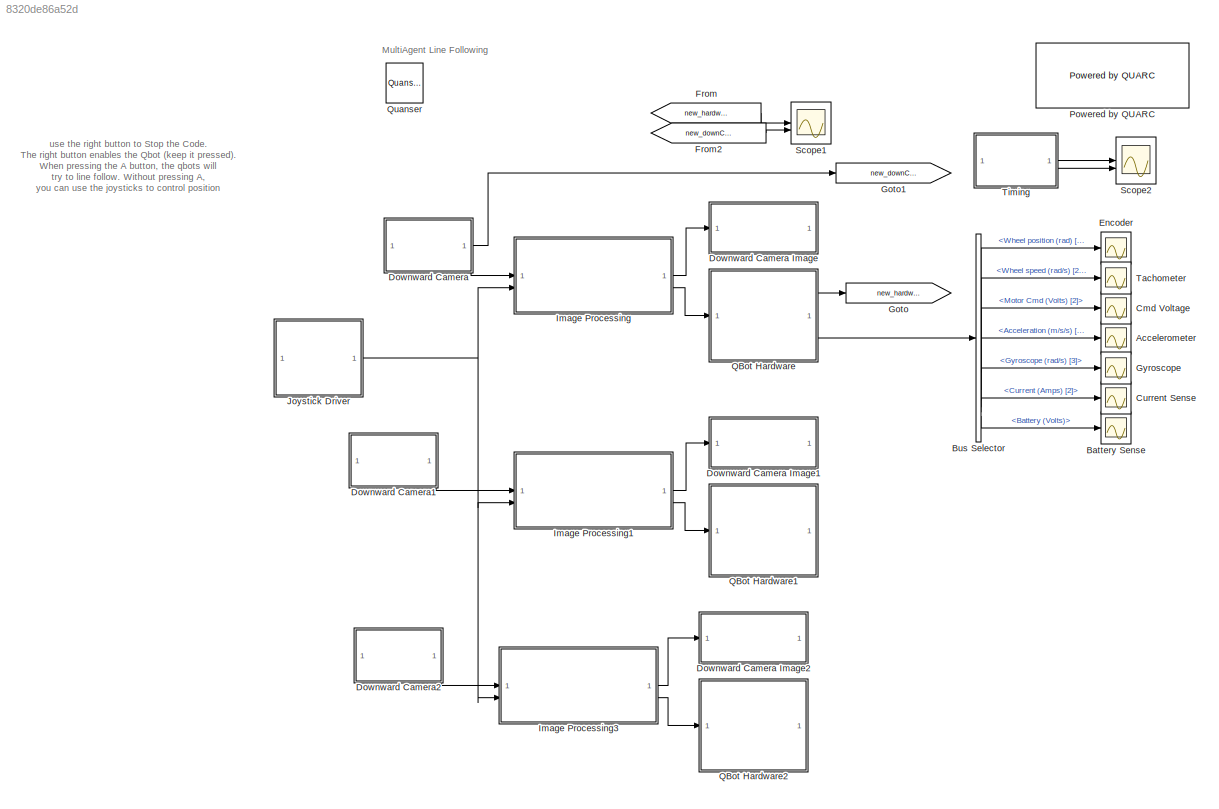
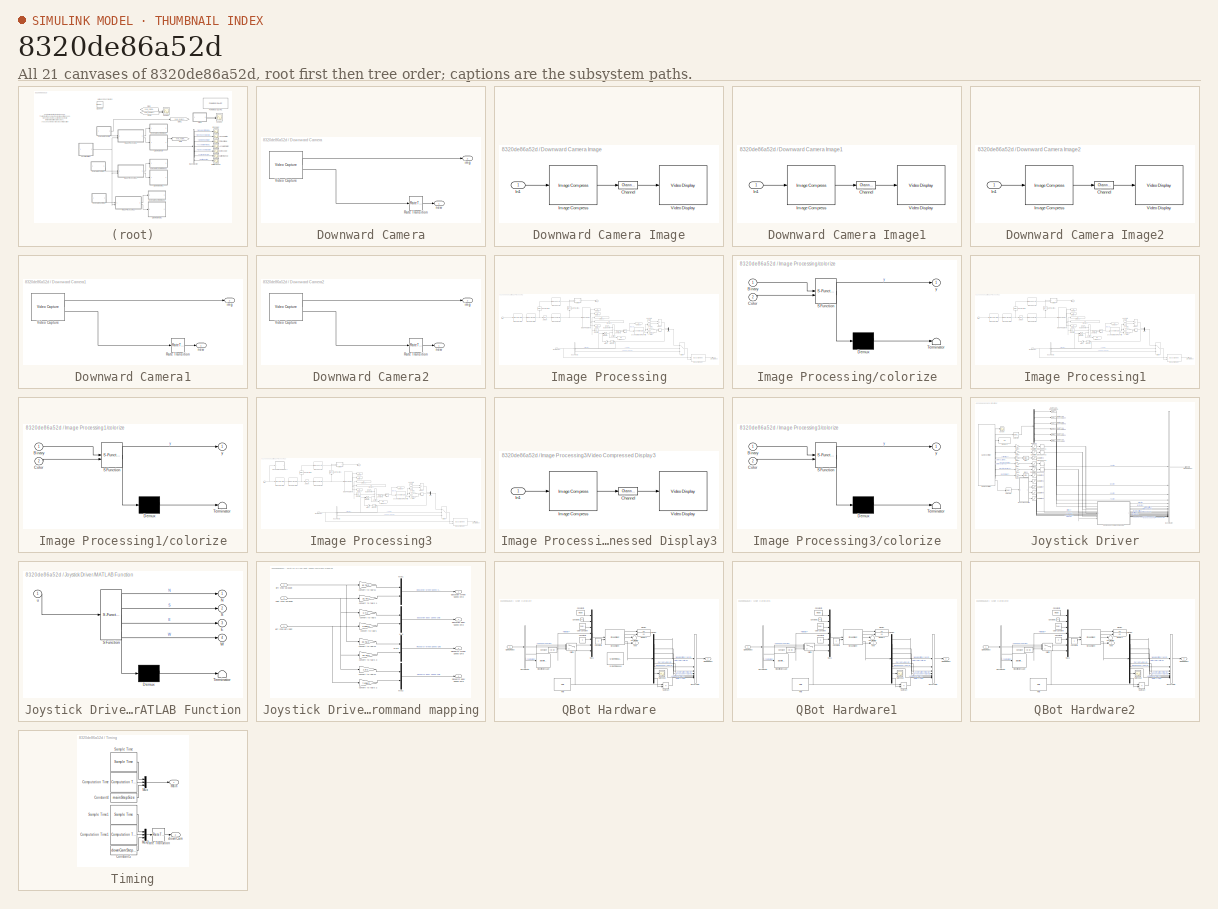
[diagram: thumbnail index - all 21 canvases of the model, root first then tree order]
MODEL slx_8320de86a52d
KIND model
CONFIG AbsTol = auto
CONFIG EnableMultiTasking = on
CONFIG FixedStep = 1/60
CONFIG MaxStep = auto
CONFIG MinStep = auto
CONFIG RelTol = 1e-3
CONFIG SampleTimeConstraint = Unconstrained
CONFIG SolverName = ode1
CONFIG StartTime = 0.0
CONFIG StopTime = inf
WORKSPACE source: mxarray member
WORKSPACE downCamStepSize: Simulink.Parameter (value not decoded)
WORKSPACE lidarStepSize: Simulink.Parameter (value not decoded)
WORKSPACE mainStepSize: Simulink.Parameter (value not decoded)
WORKSPACE mode: Simulink.Parameter (value not decoded)
WORKSPACE realSenseStepSize: Simulink.Parameter (value not decoded)
BLOCK [Scope] Accelerometer
  Commented = on
  Floating = off
  NameLocation = right
  NumInputPorts = 1
  ScopeSpecificationString = Simulink.scopes.TimeScopeBlockCfg('CurrentConfiguration', extmgr.ConfigurationSet(extmgr.Configuration('Core','General UI',true),extmgr.Configuration('Core','Source UI',true),extmgr.Configuration('Sources','WiredSimulink',true,'DataLoggingVariableName','ScopeData5'),extmgr.Configuration('Visuals','Time Domain',true,'SerializedDisplays',{struct('MinYLimReal','-1.32758','MaxYLimReal','11.23','YLabel...<+1468ch>
BLOCK [Scope] Battery Sense
  Commented = on
  Floating = off
  NameLocation = right
  NumInputPorts = 1
  ScopeSpecificationString = Simulink.scopes.TimeScopeBlockCfg('CurrentConfiguration', extmgr.ConfigurationSet(extmgr.Configuration('Core','General UI',true),extmgr.Configuration('Core','Source UI',true),extmgr.Configuration('Sources','WiredSimulink',true,'DataLoggingVariableName','ScopeData8'),extmgr.Configuration('Visuals','Time Domain',true,'SerializedDisplays',{struct('MinYLimReal','12.81161','MaxYLimReal','12.96349','YLa...<+1408ch>
BLOCK [BusSelector] Bus Selector
  Commented = on
  OutputSignals = Wheel position (rad) [2],Wheel speed (rad/s) [2],Motor Cmd (Volts) [2],Acceleration (m/s/s) [3],Gyroscope (rad/s) [3],Current (Amps) [2],Battery (Volts)
BLOCK [Scope] Cmd Voltage
  Commented = on
  Floating = off
  NameLocation = right
  NumInputPorts = 1
  ScopeSpecificationString = Simulink.scopes.TimeScopeBlockCfg('CurrentConfiguration', extmgr.ConfigurationSet(extmgr.Configuration('Core','General UI',true),extmgr.Configuration('Core','Source UI',true),extmgr.Configuration('Sources','WiredSimulink',true,'DataLoggingVariableName','ScopeData4'),extmgr.Configuration('Visuals','Time Domain',true,'SerializedDisplays',{struct('MinYLimReal','-1.00000','MaxYLimReal','1.00000','YLab...<+1441ch>
BLOCK [Scope] Current Sense
  Commented = on
  Floating = off
  NameLocation = right
  NumInputPorts = 1
  ScopeSpecificationString = Simulink.scopes.TimeScopeBlockCfg('CurrentConfiguration', extmgr.ConfigurationSet(extmgr.Configuration('Core','General UI',true),extmgr.Configuration('Core','Source UI',true),extmgr.Configuration('Sources','WiredSimulink',true,'DataLoggingVariableName','ScopeData7'),extmgr.Configuration('Visuals','Time Domain',true,'SerializedDisplays',{struct('MinYLimReal','-0.05029','MaxYLimReal','0.45265','YLab...<+1434ch>
BLOCK [SubSystem] Downward Camera
BLOCK [SubSystem] Downward Camera Image
  CopyFcn = set_param(gcbh, 'UserData', gcb);\nset_param(gcbh, 'LinkStatus', 'none');
  LoadFcn = set_param(gcbh, 'UserData', gcb);
  NameChangeFcn = video_display_show([get_param(gcbh, 'UserData'), '/Video Display'], 'rename', [gcb, '/Video Display']);\nvideo_display_show([gcb, '/Video Display'], 'add', gcb);\nset_param(gcbh, 'UserData', gcb);  <repeated x4 — deduplicated; at blocks: Downward Camera Image, Downward Camera Image1, Downward Camera Image2, Video Compressed Display3>
  NameLocation = top
  OpenFcn = video_display_show([gcb, '/Video Display'], 'show', gcb);
  PreDeleteFcn = video_display_show([gcb, '/Video Display'], 'delete');
  StartFcn = video_display_show([gcb, '/Video Display'], 'add', gcb);
  UndoDeleteFcn = set_param(gcbh, 'UserData', gcb);
BLOCK [Reference] Downward Camera Image/Channel  REF=quarc_library/Signal Routing/Channel
  SourceBlock = quarc_library/Signal Routing/Channel
  SourceProductName = QUARC Targets
  SourceType = Channel
BLOCK [Reference] Downward Camera Image/Image Compress  REF=quarc_library/Image Processing/Generic/Image Compress
  AttributesFormatString = (%<algorithm>)
  SourceBlock = quarc_library/Image Processing/Generic/Image Compress
  SourceProductName = QUARC Targets
  SourceType = Image Compress
BLOCK [Inport] Downward Camera Image/In1
BLOCK [Reference] Downward Camera Image/Video Display  REF=quarc_library/Multimedia/Video Display
  SourceBlock = quarc_library/Multimedia/Video Display
  SourceProductName = QUARC Targets
  SourceType = Video Display
  Tag = line_following_2023a/Downward Camera Image/Video Display
  UserDataPersistent = on
BLOCK [SubSystem] Downward Camera Image1
  CopyFcn = set_param(gcbh, 'UserData', gcb);\nset_param(gcbh, 'LinkStatus', 'none');
  LoadFcn = set_param(gcbh, 'UserData', gcb);
  NameLocation = top
  OpenFcn = video_display_show([gcb, '/Video Display'], 'show', gcb);
  PreDeleteFcn = video_display_show([gcb, '/Video Display'], 'delete');
  StartFcn = video_display_show([gcb, '/Video Display'], 'add', gcb);
  UndoDeleteFcn = set_param(gcbh, 'UserData', gcb);
BLOCK [Reference] Downward Camera Image1/Channel  REF=quarc_library/Signal Routing/Channel
  SourceBlock = quarc_library/Signal Routing/Channel
  SourceProductName = QUARC Targets
  SourceType = Channel
BLOCK [Reference] Downward Camera Image1/Image Compress  REF=quarc_library/Image Processing/Generic/Image Compress
  AttributesFormatString = (%<algorithm>)
  SourceBlock = quarc_library/Image Processing/Generic/Image Compress
  SourceProductName = QUARC Targets
  SourceType = Image Compress
BLOCK [Inport] Downward Camera Image1/In1
BLOCK [Reference] Downward Camera Image1/Video Display  REF=quarc_library/Multimedia/Video Display
  SourceBlock = quarc_library/Multimedia/Video Display
  SourceProductName = QUARC Targets
  SourceType = Video Display
  Tag = line_following_2023a/Downward Camera Image1/Video Display
  UserDataPersistent = on
BLOCK [SubSystem] Downward Camera Image2
  CopyFcn = set_param(gcbh, 'UserData', gcb);\nset_param(gcbh, 'LinkStatus', 'none');
  LoadFcn = set_param(gcbh, 'UserData', gcb);
  NameLocation = top
  OpenFcn = video_display_show([gcb, '/Video Display'], 'show', gcb);
  PreDeleteFcn = video_display_show([gcb, '/Video Display'], 'delete');
  StartFcn = video_display_show([gcb, '/Video Display'], 'add', gcb);
  UndoDeleteFcn = set_param(gcbh, 'UserData', gcb);
BLOCK [Reference] Downward Camera Image2/Channel  REF=quarc_library/Signal Routing/Channel
  SourceBlock = quarc_library/Signal Routing/Channel
  SourceProductName = QUARC Targets
  SourceType = Channel
BLOCK [Reference] Downward Camera Image2/Image Compress  REF=quarc_library/Image Processing/Generic/Image Compress
  AttributesFormatString = (%<algorithm>)
  SourceBlock = quarc_library/Image Processing/Generic/Image Compress
  SourceProductName = QUARC Targets
  SourceType = Image Compress
BLOCK [Inport] Downward Camera Image2/In1
BLOCK [Reference] Downward Camera Image2/Video Display  REF=quarc_library/Multimedia/Video Display
  SourceBlock = quarc_library/Multimedia/Video Display
  SourceProductName = QUARC Targets
  SourceType = Video Display
  Tag = line_following_2023a/Downward Camera Image2/Video Display
  UserDataPersistent = on
BLOCK [RateTransition] Downward Camera/Rate Transition
BLOCK [Reference] Downward Camera/Video Capture  REF=quarc_library/Multimedia/Video Capture
  SourceBlock = quarc_library/Multimedia/Video Capture
  SourceProductName = QUARC Targets
  SourceType = Video Capture
BLOCK [Outport] Downward Camera/img
  Port = 2
BLOCK [Outport] Downward Camera/new
BLOCK [SubSystem] Downward Camera1
BLOCK [RateTransition] Downward Camera1/Rate Transition
BLOCK [Reference] Downward Camera1/Video Capture  REF=quarc_library/Multimedia/Video Capture
  SourceBlock = quarc_library/Multimedia/Video Capture
  SourceProductName = QUARC Targets
  SourceType = Video Capture
BLOCK [Outport] Downward Camera1/img
  Port = 2
BLOCK [Outport] Downward Camera1/new
BLOCK [SubSystem] Downward Camera2
BLOCK [RateTransition] Downward Camera2/Rate Transition
BLOCK [Reference] Downward Camera2/Video Capture  REF=quarc_library/Multimedia/Video Capture
  SourceBlock = quarc_library/Multimedia/Video Capture
  SourceProductName = QUARC Targets
  SourceType = Video Capture
BLOCK [Outport] Downward Camera2/img
  Port = 2
BLOCK [Outport] Downward Camera2/new
BLOCK [Scope] Encoder
  Commented = on
  Floating = off
  NameLocation = right
  NumInputPorts = 1
  ScopeSpecificationString = Simulink.scopes.TimeScopeBlockCfg('CurrentConfiguration', extmgr.ConfigurationSet(extmgr.Configuration('Core','General UI',true),extmgr.Configuration('Core','Source UI',true),extmgr.Configuration('Sources','WiredSimulink',true,'DataLoggingVariableName','ScopeData2'),extmgr.Configuration('Visuals','Time Domain',true,'SerializedDisplays',{struct('MinYLimReal','-23.46955','MaxYLimReal','23.65434','YL...<+1452ch>
BLOCK [From] From
  GotoTag = new_hardware
BLOCK [From] From2
  GotoTag = new_downCam
BLOCK [Goto] Goto
  GotoTag = new_hardware
BLOCK [Goto] Goto1
  GotoTag = new_downCam
BLOCK [Scope] Gyroscope
  Commented = on
  Floating = off
  NameLocation = right
  NumInputPorts = 1
  ScopeSpecificationString = Simulink.scopes.TimeScopeBlockCfg('CurrentConfiguration', extmgr.ConfigurationSet(extmgr.Configuration('Core','General UI',true),extmgr.Configuration('Core','Source UI',true),extmgr.Configuration('Sources','WiredSimulink',true,'DataLoggingVariableName','ScopeData6'),extmgr.Configuration('Visuals','Time Domain',true,'SerializedDisplays',{struct('MinYLimReal','-0.40322','MaxYLimReal','1.99912','YLab...<+1468ch>
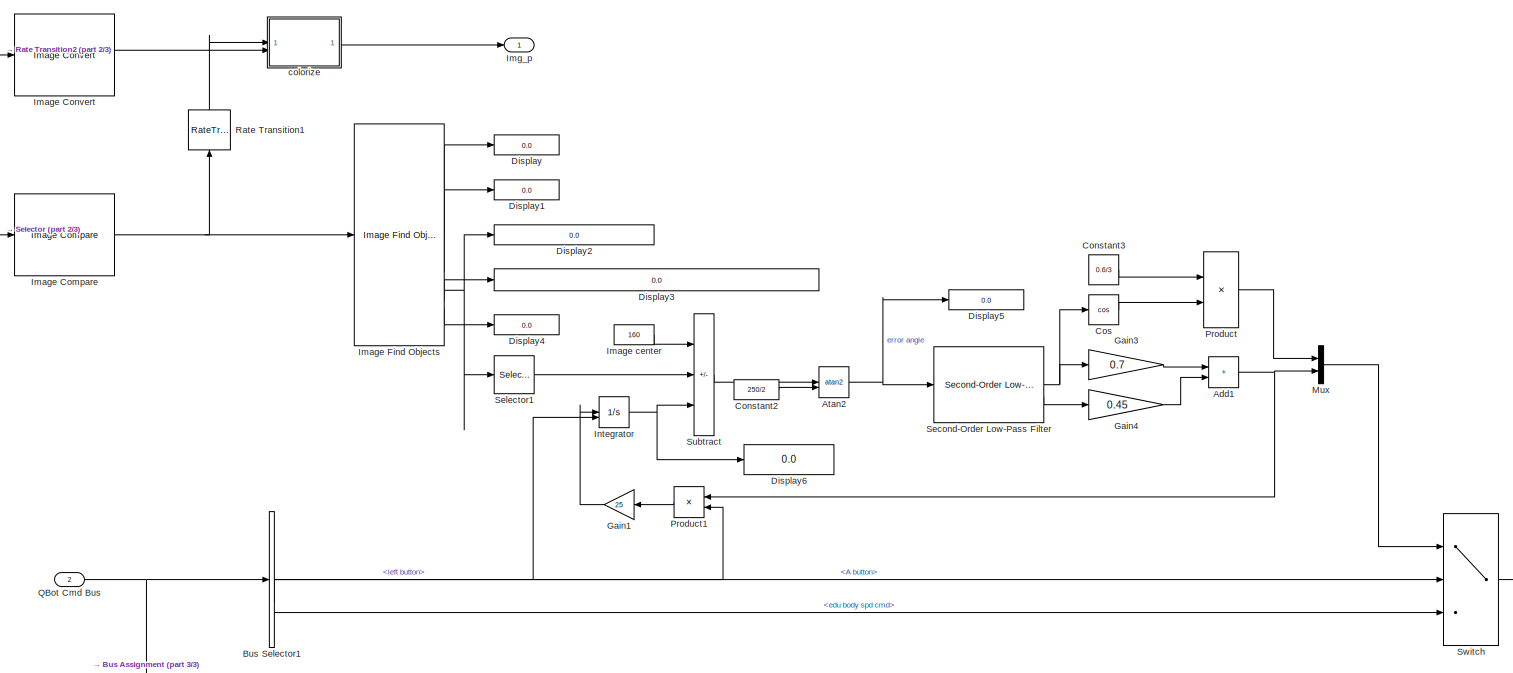
[diagram: Image Processing - part 1/3, center side, full height]
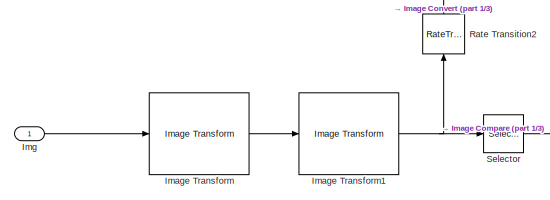
[diagram: Image Processing - part 2/3, top left region]
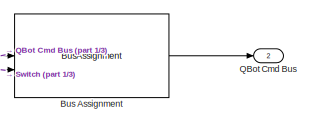
[diagram: Image Processing - part 3/3, bottom right region]
BLOCK [SubSystem] Image Processing
BLOCK [Sum] Image Processing/Add1
  IconShape = rectangular
BLOCK [Trigonometry] Image Processing/Atan2
  Operator = atan2
BLOCK [BusAssignment] Image Processing/Bus Assignment
  AssignedSignals = edu body spd cmd
BLOCK [BusSelector] Image Processing/Bus Selector1
  OutputSignals = left button,A button,edu body spd cmd
BLOCK [Constant] Image Processing/Constant2
  Value = 250/2
BLOCK [Constant] Image Processing/Constant3
  Value = 0.6/3
BLOCK [Trigonometry] Image Processing/Cos
  Operator = cos
BLOCK [Display] Image Processing/Display
  Format = bank
BLOCK [Display] Image Processing/Display1
  Format = bank
BLOCK [Display] Image Processing/Display2
  Format = bank
BLOCK [Display] Image Processing/Display3
  Format = bank
BLOCK [Display] Image Processing/Display4
  Format = bank
BLOCK [Display] Image Processing/Display5
  Decimation = 1
BLOCK [Display] Image Processing/Display6
  Decimation = 1
BLOCK [Gain] Image Processing/Gain1
  Gain = 25
  NameLocation = top
BLOCK [Gain] Image Processing/Gain3
  Gain = 0.7
BLOCK [Gain] Image Processing/Gain4
  Gain = 0.45
BLOCK [Reference] Image Processing/Image Compare  REF=quarc_library/Image Processing/Generic/Image Compare
  SourceBlock = quarc_library/Image Processing/Generic/Image Compare
  SourceProductName = QUARC Targets
  SourceType = Image Compare
BLOCK [Reference] Image Processing/Image Convert  REF=quarc_library/Image Processing/Generic/Image Convert
  AttributesFormatString = (%<input_format>)
  SourceBlock = quarc_library/Image Processing/Generic/Image Convert
  SourceProductName = QUARC Targets
  SourceType = Image Convert
BLOCK [Reference] Image Processing/Image Find Objects  REF=quarc_library/Image Processing/Generic/Image Find Objects
  SourceBlock = quarc_library/Image Processing/Generic/Image Find Objects
  SourceProductName = QUARC Targets
  SourceType = Image Find Objects
BLOCK [Reference] Image Processing/Image Transform  REF=quarc_library/Image Processing/Generic/Image Transform
  AttributesFormatString = (%<algorithm>)
  SourceBlock = quarc_library/Image Processing/Generic/Image Transform
  SourceProductName = QUARC Targets
  SourceType = Image Transform
BLOCK [Reference] Image Processing/Image Transform1  REF=quarc_library/Image Processing/Generic/Image Transform
  AttributesFormatString = (%<algorithm>)
  SourceBlock = quarc_library/Image Processing/Generic/Image Transform
  SourceProductName = QUARC Targets
  SourceType = Image Transform
BLOCK [Constant] Image Processing/Image center
  Value = 160
BLOCK [Inport] Image Processing/Img
BLOCK [Outport] Image Processing/Img_p
BLOCK [Integrator] Image Processing/Integrator
  ExternalReset = falling
  LimitOutput = on
  LowerSaturationLimit = -75
  UpperSaturationLimit = 75
BLOCK [Mux] Image Processing/Mux
  DisplayOption = bar
  Inputs = 2
BLOCK [Product] Image Processing/Product
BLOCK [Product] Image Processing/Product1
  NameLocation = top
BLOCK [Outport] Image Processing/QBot Cmd Bus
  Port = 2
BLOCK [Inport] Image Processing/QBot Cmd Bus 
  Port = 2
BLOCK [RateTransition] Image Processing/Rate Transition1
  NameLocation = right
  OutPortSampleTime = downCamStepSize*2
BLOCK [RateTransition] Image Processing/Rate Transition2
  NameLocation = right
  OutPortSampleTime = downCamStepSize*2
BLOCK [Reference] Image Processing/Second-Order Low-Pass Filter  REF=quarc_library/Continuous/Second-Order
Low-Pass Filter
  SourceBlock = quarc_library/Continuous/Second-Order\nLow-Pass Filter
  SourceProductName = QUARC Targets
  SourceType = Second-Order Low-Pass Filter
BLOCK [Selector] Image Processing/Selector
  IndexOptions = Index vector (dialog),Select all
  Indices = [51:100],[101:540]
  InputPortWidth = 3
  NumberOfDimensions = 2
  OutputSizes = 1,1
BLOCK [Selector] Image Processing/Selector1
  IndexOptions = Index vector (dialog)
  Indices = 2
  InputPortWidth = 2
  OutputSizes = 1
BLOCK [Sum] Image Processing/Subtract
  IconShape = rectangular
  Inputs = +-+
BLOCK [Switch] Image Processing/Switch
  Criteria = u2 > Threshold
  InputSameDT = off
  SaturateOnIntegerOverflow = off
BLOCK [SubSystem] Image Processing/colorize
  ErrorFcn = Stateflow.Translate.translate
  PermitHierarchicalResolution = ExplicitOnly
  SFBlockType = MATLAB Function
  TreatAsAtomicUnit = on
BLOCK [Demux] Image Processing/colorize/ Demux 
  Outputs = 1
BLOCK [S-Function] Image Processing/colorize/ SFunction 
  EnableBusSupport = on
  FunctionName = sf_sfun
  PortCounts = [2 2]
  SFcnIsStateOwnerBlock = off
  SFunctionDeploymentMode = off
  Tag = Stateflow S-Function 14
BLOCK [Terminator] Image Processing/colorize/ Terminator 
BLOCK [Inport] Image Processing/colorize/Binary
BLOCK [Inport] Image Processing/colorize/Color
  Port = 2
BLOCK [Outport] Image Processing/colorize/y
  VectorParamsAs1DForOutWhenUnconnected = off
BLOCK [SubSystem] Image Processing1
BLOCK [Sum] Image Processing1/Add1
  IconShape = rectangular
BLOCK [Trigonometry] Image Processing1/Atan2
  Operator = atan2
BLOCK [BusAssignment] Image Processing1/Bus Assignment
  AssignedSignals = edu body spd cmd
BLOCK [BusSelector] Image Processing1/Bus Selector1
  OutputSignals = left button,A button,edu body spd cmd
BLOCK [Constant] Image Processing1/Constant2
  Value = 250/2
BLOCK [Constant] Image Processing1/Constant3
  Value = 0.6/3
BLOCK [Trigonometry] Image Processing1/Cos
  Operator = cos
BLOCK [Display] Image Processing1/Display
  Format = bank
BLOCK [Display] Image Processing1/Display1
  Format = bank
BLOCK [Display] Image Processing1/Display2
  Format = bank
BLOCK [Display] Image Processing1/Display3
  Format = bank
BLOCK [Display] Image Processing1/Display4
  Format = bank
BLOCK [Display] Image Processing1/Display5
  Decimation = 1
BLOCK [Display] Image Processing1/Display6
  Decimation = 1
BLOCK [Gain] Image Processing1/Gain1
  Gain = 25
  NameLocation = top
BLOCK [Gain] Image Processing1/Gain3
  Gain = 0.7
BLOCK [Gain] Image Processing1/Gain4
  Gain = 0.45
BLOCK [Reference] Image Processing1/Image Compare  REF=quarc_library/Image Processing/Generic/Image Compare
  SourceBlock = quarc_library/Image Processing/Generic/Image Compare
  SourceProductName = QUARC Targets
  SourceType = Image Compare
BLOCK [Reference] Image Processing1/Image Convert  REF=quarc_library/Image Processing/Generic/Image Convert
  AttributesFormatString = (%<input_format>)
  SourceBlock = quarc_library/Image Processing/Generic/Image Convert
  SourceProductName = QUARC Targets
  SourceType = Image Convert
BLOCK [Reference] Image Processing1/Image Find Objects  REF=quarc_library/Image Processing/Generic/Image Find Objects
  SourceBlock = quarc_library/Image Processing/Generic/Image Find Objects
  SourceProductName = QUARC Targets
  SourceType = Image Find Objects
BLOCK [Reference] Image Processing1/Image Transform  REF=quarc_library/Image Processing/Generic/Image Transform
  AttributesFormatString = (%<algorithm>)
  SourceBlock = quarc_library/Image Processing/Generic/Image Transform
  SourceProductName = QUARC Targets
  SourceType = Image Transform
BLOCK [Reference] Image Processing1/Image Transform1  REF=quarc_library/Image Processing/Generic/Image Transform
  AttributesFormatString = (%<algorithm>)
  SourceBlock = quarc_library/Image Processing/Generic/Image Transform
  SourceProductName = QUARC Targets
  SourceType = Image Transform
BLOCK [Constant] Image Processing1/Image center
  Value = 160
BLOCK [Inport] Image Processing1/Img
BLOCK [Outport] Image Processing1/Img_p
BLOCK [Integrator] Image Processing1/Integrator
  ExternalReset = falling
  LimitOutput = on
  LowerSaturationLimit = -75
  UpperSaturationLimit = 75
BLOCK [Mux] Image Processing1/Mux
  DisplayOption = bar
  Inputs = 2
BLOCK [Product] Image Processing1/Product
BLOCK [Product] Image Processing1/Product1
  NameLocation = top
BLOCK [Outport] Image Processing1/QBot Cmd Bus
  Port = 2
BLOCK [Inport] Image Processing1/QBot Cmd Bus 
  Port = 2
BLOCK [RateTransition] Image Processing1/Rate Transition1
  NameLocation = right
  OutPortSampleTime = downCamStepSize*2
BLOCK [RateTransition] Image Processing1/Rate Transition2
  NameLocation = right
  OutPortSampleTime = downCamStepSize*2
BLOCK [Reference] Image Processing1/Second-Order Low-Pass Filter  REF=quarc_library/Continuous/Second-Order
Low-Pass Filter
  SourceBlock = quarc_library/Continuous/Second-Order\nLow-Pass Filter
  SourceProductName = QUARC Targets
  SourceType = Second-Order Low-Pass Filter
BLOCK [Selector] Image Processing1/Selector
  IndexOptions = Index vector (dialog),Select all
  Indices = [51:100],[101:540]
  InputPortWidth = 3
  NumberOfDimensions = 2
  OutputSizes = 1,1
BLOCK [Selector] Image Processing1/Selector1
  IndexOptions = Index vector (dialog)
  Indices = 2
  InputPortWidth = 2
  OutputSizes = 1
BLOCK [Sum] Image Processing1/Subtract
  IconShape = rectangular
  Inputs = +-+
BLOCK [Switch] Image Processing1/Switch
  Criteria = u2 > Threshold
  InputSameDT = off
  SaturateOnIntegerOverflow = off
BLOCK [SubSystem] Image Processing1/colorize
  ErrorFcn = Stateflow.Translate.translate
  PermitHierarchicalResolution = ExplicitOnly
  SFBlockType = MATLAB Function
  TreatAsAtomicUnit = on
BLOCK [Demux] Image Processing1/colorize/ Demux 
  Outputs = 1
BLOCK [S-Function] Image Processing1/colorize/ SFunction 
  EnableBusSupport = on
  FunctionName = sf_sfun
  PortCounts = [2 2]
  SFcnIsStateOwnerBlock = off
  SFunctionDeploymentMode = off
  Tag = Stateflow S-Function 2
BLOCK [Terminator] Image Processing1/colorize/ Terminator 
BLOCK [Inport] Image Processing1/colorize/Binary
BLOCK [Inport] Image Processing1/colorize/Color
  Port = 2
BLOCK [Outport] Image Processing1/colorize/y
  VectorParamsAs1DForOutWhenUnconnected = off
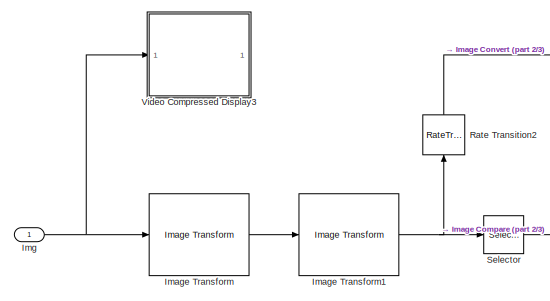
[diagram: Image Processing3 - part 1/3, top left region]
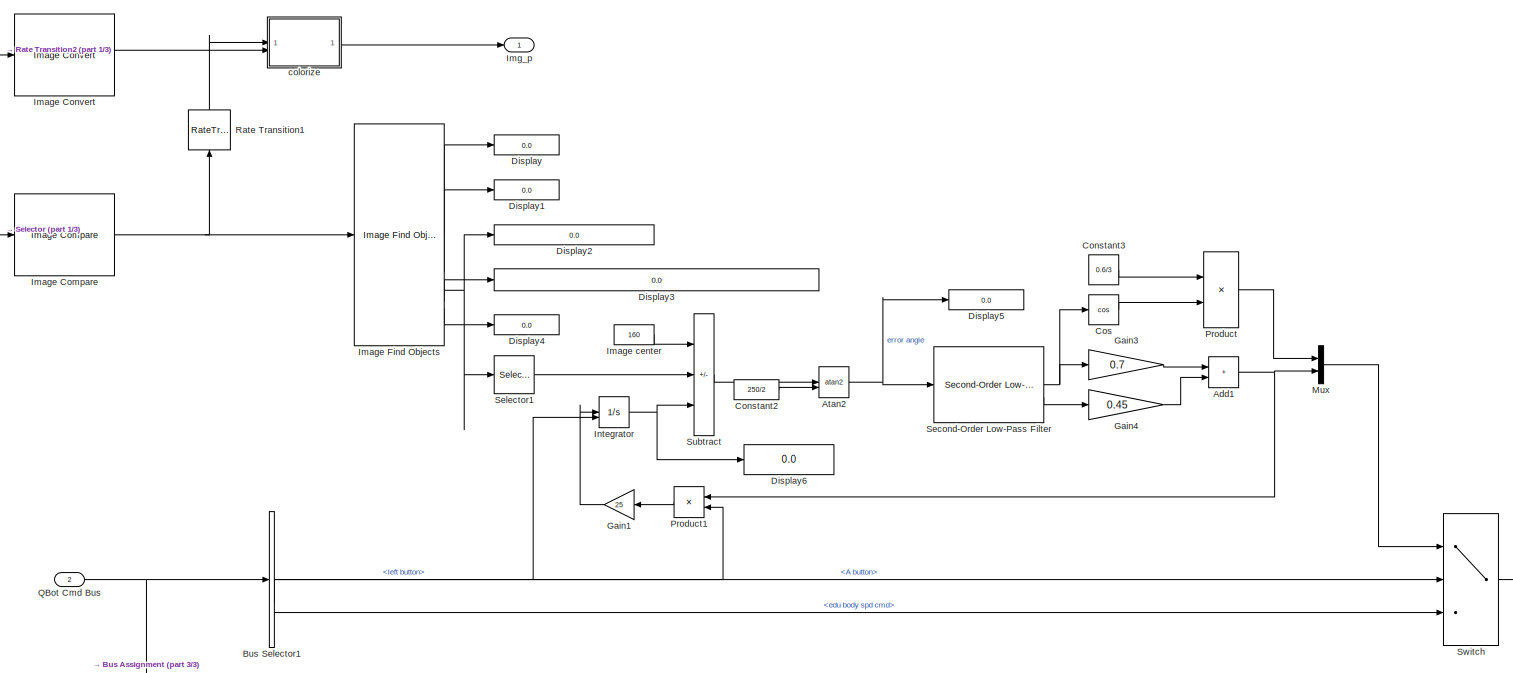
[diagram: Image Processing3 - part 2/3, center side, full height]
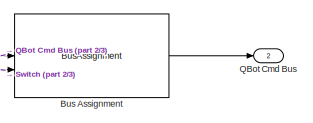
[diagram: Image Processing3 - part 3/3, bottom right region]
BLOCK [SubSystem] Image Processing3
BLOCK [Sum] Image Processing3/Add1
  IconShape = rectangular
BLOCK [Trigonometry] Image Processing3/Atan2
  Operator = atan2
BLOCK [BusAssignment] Image Processing3/Bus Assignment
  AssignedSignals = edu body spd cmd
BLOCK [BusSelector] Image Processing3/Bus Selector1
  OutputSignals = left button,A button,edu body spd cmd
BLOCK [Constant] Image Processing3/Constant2
  Value = 250/2
BLOCK [Constant] Image Processing3/Constant3
  Value = 0.6/3
BLOCK [Trigonometry] Image Processing3/Cos
  Operator = cos
BLOCK [Display] Image Processing3/Display
  Format = bank
BLOCK [Display] Image Processing3/Display1
  Format = bank
BLOCK [Display] Image Processing3/Display2
  Format = bank
BLOCK [Display] Image Processing3/Display3
  Format = bank
BLOCK [Display] Image Processing3/Display4
  Format = bank
BLOCK [Display] Image Processing3/Display5
  Decimation = 1
BLOCK [Display] Image Processing3/Display6
  Decimation = 1
BLOCK [Gain] Image Processing3/Gain1
  Gain = 25
  NameLocation = top
BLOCK [Gain] Image Processing3/Gain3
  Gain = 0.7
BLOCK [Gain] Image Processing3/Gain4
  Gain = 0.45
BLOCK [Reference] Image Processing3/Image Compare  REF=quarc_library/Image Processing/Generic/Image Compare
  SourceBlock = quarc_library/Image Processing/Generic/Image Compare
  SourceProductName = QUARC Targets
  SourceType = Image Compare
BLOCK [Reference] Image Processing3/Image Convert  REF=quarc_library/Image Processing/Generic/Image Convert
  AttributesFormatString = (%<input_format>)
  SourceBlock = quarc_library/Image Processing/Generic/Image Convert
  SourceProductName = QUARC Targets
  SourceType = Image Convert
BLOCK [Reference] Image Processing3/Image Find Objects  REF=quarc_library/Image Processing/Generic/Image Find Objects
  SourceBlock = quarc_library/Image Processing/Generic/Image Find Objects
  SourceProductName = QUARC Targets
  SourceType = Image Find Objects
BLOCK [Reference] Image Processing3/Image Transform  REF=quarc_library/Image Processing/Generic/Image Transform
  AttributesFormatString = (%<algorithm>)
  SourceBlock = quarc_library/Image Processing/Generic/Image Transform
  SourceProductName = QUARC Targets
  SourceType = Image Transform
BLOCK [Reference] Image Processing3/Image Transform1  REF=quarc_library/Image Processing/Generic/Image Transform
  AttributesFormatString = (%<algorithm>)
  SourceBlock = quarc_library/Image Processing/Generic/Image Transform
  SourceProductName = QUARC Targets
  SourceType = Image Transform
BLOCK [Constant] Image Processing3/Image center
  Value = 160
BLOCK [Inport] Image Processing3/Img
BLOCK [Outport] Image Processing3/Img_p
BLOCK [Integrator] Image Processing3/Integrator
  ExternalReset = falling
  LimitOutput = on
  LowerSaturationLimit = -75
  UpperSaturationLimit = 75
BLOCK [Mux] Image Processing3/Mux
  DisplayOption = bar
  Inputs = 2
BLOCK [Product] Image Processing3/Product
BLOCK [Product] Image Processing3/Product1
  NameLocation = top
BLOCK [Outport] Image Processing3/QBot Cmd Bus
  Port = 2
BLOCK [Inport] Image Processing3/QBot Cmd Bus 
  Port = 2
BLOCK [RateTransition] Image Processing3/Rate Transition1
  NameLocation = right
  OutPortSampleTime = downCamStepSize*2
BLOCK [RateTransition] Image Processing3/Rate Transition2
  NameLocation = right
  OutPortSampleTime = downCamStepSize*2
BLOCK [Reference] Image Processing3/Second-Order Low-Pass Filter  REF=quarc_library/Continuous/Second-Order
Low-Pass Filter
  SourceBlock = quarc_library/Continuous/Second-Order\nLow-Pass Filter
  SourceProductName = QUARC Targets
  SourceType = Second-Order Low-Pass Filter
BLOCK [Selector] Image Processing3/Selector
  IndexOptions = Index vector (dialog),Select all
  Indices = [51:100],[101:540]
  InputPortWidth = 3
  NumberOfDimensions = 2
  OutputSizes = 1,1
BLOCK [Selector] Image Processing3/Selector1
  IndexOptions = Index vector (dialog)
  Indices = 2
  InputPortWidth = 2
  OutputSizes = 1
BLOCK [Sum] Image Processing3/Subtract
  IconShape = rectangular
  Inputs = +-+
BLOCK [Switch] Image Processing3/Switch
  Criteria = u2 > Threshold
  InputSameDT = off
  SaturateOnIntegerOverflow = off
BLOCK [SubSystem] Image Processing3/Video Compressed Display3
  Commented = on
  CopyFcn = set_param(gcbh, 'UserData', gcb);\nset_param(gcbh, 'LinkStatus', 'none');
  LoadFcn = set_param(gcbh, 'UserData', gcb);
  OpenFcn = video_display_show([gcb, '/Video Display'], 'show', gcb);
  PreDeleteFcn = video_display_show([gcb, '/Video Display'], 'delete');
  StartFcn = video_display_show([gcb, '/Video Display'], 'add', gcb);
  UndoDeleteFcn = set_param(gcbh, 'UserData', gcb);
BLOCK [Reference] Image Processing3/Video Compressed Display3/Channel  REF=quarc_library/Signal Routing/Channel
  SourceBlock = quarc_library/Signal Routing/Channel
  SourceProductName = QUARC Targets
  SourceType = Channel
BLOCK [Reference] Image Processing3/Video Compressed Display3/Image Compress  REF=quarc_library/Image Processing/Generic/Image Compress
  AttributesFormatString = (%<algorithm>)
  SourceBlock = quarc_library/Image Processing/Generic/Image Compress
  SourceProductName = QUARC Targets
  SourceType = Image Compress
BLOCK [Inport] Image Processing3/Video Compressed Display3/In1
BLOCK [Reference] Image Processing3/Video Compressed Display3/Video Display  REF=quarc_library/Multimedia/Video Display
  SourceBlock = quarc_library/Multimedia/Video Display
  SourceProductName = QUARC Targets
  SourceType = Video Display
  Tag = line_following_2023a/Image Processing3/Video Compressed\nDisplay3/Video Display
  UserDataPersistent = on
BLOCK [SubSystem] Image Processing3/colorize
  ErrorFcn = Stateflow.Translate.translate
  PermitHierarchicalResolution = ExplicitOnly
  SFBlockType = MATLAB Function
  TreatAsAtomicUnit = on
BLOCK [Demux] Image Processing3/colorize/ Demux 
  Outputs = 1
BLOCK [S-Function] Image Processing3/colorize/ SFunction 
  EnableBusSupport = on
  FunctionName = sf_sfun
  PortCounts = [2 2]
  SFcnIsStateOwnerBlock = off
  SFunctionDeploymentMode = off
  Tag = Stateflow S-Function 4
BLOCK [Terminator] Image Processing3/colorize/ Terminator 
BLOCK [Inport] Image Processing3/colorize/Binary
BLOCK [Inport] Image Processing3/colorize/Color
  Port = 2
BLOCK [Outport] Image Processing3/colorize/y
  VectorParamsAs1DForOutWhenUnconnected = off
BLOCK [SubSystem] Joystick Driver
BLOCK [Bias] Joystick Driver/Bias
  Bias = 0.5
  SaturateOnIntegerOverflow = off
BLOCK [Bias] Joystick Driver/Bias1
  Bias = 0.5
  SaturateOnIntegerOverflow = off
BLOCK [BusCreator] Joystick Driver/Bus Creator
  DisplayOption = bar
  InheritFromInputs = on
  Inputs = 20
BLOCK [DataTypeConversion] Joystick Driver/Data Type Conversion
  RndMeth = Floor
  SaturateOnIntegerOverflow = off
BLOCK [DataTypeConversion] Joystick Driver/Data Type Conversion1
  RndMeth = Floor
  SaturateOnIntegerOverflow = off
BLOCK [DataTypeConversion] Joystick Driver/Data Type Conversion2
  RndMeth = Floor
  SaturateOnIntegerOverflow = off
BLOCK [DataTypeConversion] Joystick Driver/Data Type Conversion3
  RndMeth = Floor
  SaturateOnIntegerOverflow = off
BLOCK [DataTypeConversion] Joystick Driver/Data Type Conversion4
  RndMeth = Floor
  SaturateOnIntegerOverflow = off
BLOCK [DataTypeConversion] Joystick Driver/Data Type Conversion5
  RndMeth = Floor
  SaturateOnIntegerOverflow = off
BLOCK [DeadZone] Joystick Driver/Dead Zone
  LowerValue = -0.05
  UpperValue = 0.05
BLOCK [DeadZone] Joystick Driver/Dead Zone1
  LowerValue = -0.05
  UpperValue = 0.05
BLOCK [DeadZone] Joystick Driver/Dead Zone2
  LowerValue = -0.05
  UpperValue = 0.05
BLOCK [DeadZone] Joystick Driver/Dead Zone3
  LowerValue = -0.05
  UpperValue = 0.05
BLOCK [Demux] Joystick Driver/Demux1
  Outputs = 6
BLOCK [Display] Joystick Driver/Display5
  Decimation = 1
BLOCK [Gain] Joystick Driver/Gain4
  Gain = -1
BLOCK [Gain] Joystick Driver/Gain5
  Gain = -1
BLOCK [Gain] Joystick Driver/Gain6
  Gain = 0.5
BLOCK [Gain] Joystick Driver/Gain7
  Gain = -1
BLOCK [Gain] Joystick Driver/Gain8
  Gain = -1
BLOCK [Gain] Joystick Driver/Gain9
  Gain = 0.5
BLOCK [Reference] Joystick Driver/Game Controller  REF=quarc_library/Devices/Peripherals/Target/Game Controller
  SourceBlock = quarc_library/Devices/Peripherals/Target/Game Controller
  SourceProductName = QUARC Targets
  SourceType = Game Controller
BLOCK [SubSystem] Joystick Driver/MATLAB Function
  ErrorFcn = Stateflow.Translate.translate
  PermitHierarchicalResolution = ExplicitOnly
  SFBlockType = MATLAB Function
  TreatAsAtomicUnit = on
BLOCK [Demux] Joystick Driver/MATLAB Function/ Demux 
  Outputs = 1
BLOCK [S-Function] Joystick Driver/MATLAB Function/ SFunction 
  EnableBusSupport = on
  FunctionName = sf_sfun
  PortCounts = [1 5]
  SFcnIsStateOwnerBlock = off
  SFunctionDeploymentMode = off
  Tag = Stateflow S-Function 1
BLOCK [Terminator] Joystick Driver/MATLAB Function/ Terminator 
BLOCK [Outport] Joystick Driver/MATLAB Function/E
  Port = 3
BLOCK [Outport] Joystick Driver/MATLAB Function/N
BLOCK [Outport] Joystick Driver/MATLAB Function/S
  Port = 2
BLOCK [Outport] Joystick Driver/MATLAB Function/W
  Port = 4
BLOCK [Inport] Joystick Driver/MATLAB Function/u
BLOCK [Outport] Joystick Driver/QBot Cmd Bus
BLOCK [Saturate] Joystick Driver/Saturation
  LowerLimit = -1
  UpperLimit = 1
BLOCK [Saturate] Joystick Driver/Saturation1
  LowerLimit = -1
  UpperLimit = 1
BLOCK [Saturate] Joystick Driver/Saturation2
  LowerLimit = 0
  UpperLimit = 1
BLOCK [Saturate] Joystick Driver/Saturation3
  LowerLimit = -1
  UpperLimit = 1
BLOCK [Saturate] Joystick Driver/Saturation4
  LowerLimit = -1
  UpperLimit = 1
BLOCK [Saturate] Joystick Driver/Saturation5
  LowerLimit = 0
  UpperLimit = 1
BLOCK [Saturate] Joystick Driver/Saturation6
  LowerLimit = 0
  UpperLimit = 1
BLOCK [Saturate] Joystick Driver/Saturation7
  LowerLimit = 0
  UpperLimit = 1
BLOCK [Saturate] Joystick Driver/Saturation8
  LowerLimit = 0
  UpperLimit = 1
BLOCK [Saturate] Joystick Driver/Saturation9
  LowerLimit = 0
  UpperLimit = 1
BLOCK [Scope] Joystick Driver/Scope
  Floating = off
  NumInputPorts = 1
  ScopeSpecificationString = Simulink.scopes.TimeScopeBlockCfg('CurrentConfiguration', extmgr.ConfigurationSet(extmgr.Configuration('Core','General UI',true),extmgr.Configuration('Core','Source UI',true),extmgr.Configuration('Sources','WiredSimulink',true),extmgr.Configuration('Visuals','Time Domain',true,'SerializedDisplays',{struct('MinYLimReal','-1.00000','MaxYLimReal','1.00000','YLabelReal','','MinYLimMag','0.00000','MaxY...<+1348ch>
BLOCK [Selector] Joystick Driver/Selector
  IndexOptions = Index vector (dialog)
  Indices = [1:6]
  InputPortWidth = 32
  OutputSizes = 1
BLOCK [Selector] Joystick Driver/Selector1
  IndexOptions = Index vector (dialog)
  Indices = 1
  InputPortWidth = 4
  OutputSizes = 1
BLOCK [SubSystem] Joystick Driver/qbot speed command mapping
BLOCK [Outport] Joystick Driver/qbot speed command mapping/Education Body Speed Cmd
  Port = 2
BLOCK [Outport] Joystick Driver/qbot speed command mapping/Education Wheel Speed Cmd
BLOCK [Mux] Joystick Driver/qbot speed command mapping/Mux
  DisplayOption = bar
  Inputs = 2
BLOCK [Mux] Joystick Driver/qbot speed command mapping/Mux1
  DisplayOption = bar
  Inputs = 2
BLOCK [Mux] Joystick Driver/qbot speed command mapping/Mux2
  DisplayOption = bar
  Inputs = 2
BLOCK [Mux] Joystick Driver/qbot speed command mapping/Mux3
  DisplayOption = bar
  Inputs = 2
BLOCK [Outport] Joystick Driver/qbot speed command mapping/Research  Body Speed Cmd
  Port = 4
BLOCK [Outport] Joystick Driver/qbot speed command mapping/Research Wheel Speed Cmd
  Port = 3
BLOCK [Gain] Joystick Driver/qbot speed command mapping/convert to rad//s
  Gain = 0.7/2
BLOCK [Gain] Joystick Driver/qbot speed command mapping/convert to rad//s 
  Gain = 3.565/2
BLOCK [Gain] Joystick Driver/qbot speed command mapping/convert to rad//s 1
  Gain = 15.75/2
BLOCK [Gain] Joystick Driver/qbot speed command mapping/convert to rad//s 2
  Gain = 7.638/2
BLOCK [Gain] Joystick Driver/qbot speed command mapping/convert to rad//s 3
  Gain = 33.75/2
BLOCK [Gain] Joystick Driver/qbot speed command mapping/convert to rad//s1
  Gain = 15.75/2
BLOCK [Gain] Joystick Driver/qbot speed command mapping/convert to rad//s2
  Gain = 1.5/2
BLOCK [Gain] Joystick Driver/qbot speed command mapping/convert to rad//s3
  Gain = 33.75/2
BLOCK [Inport] Joystick Driver/qbot speed command mapping/left stick left//right
BLOCK [Inport] Joystick Driver/qbot speed command mapping/left stick up//down
  Port = 2
BLOCK [Inport] Joystick Driver/qbot speed command mapping/right stick up//down
  Port = 3
BLOCK [Reference] Powered by QUARC  REF=quarc_library/Logos/Powered by QUARC
  SourceBlock = quarc_library/Logos/Powered by QUARC
  SourceProductName = QUARC Targets
  SourceType = Powered by QUARC
BLOCK [SubSystem] QBot Hardware
BLOCK [BusCreator] QBot Hardware/Bus Creator
  DisplayOption = bar
  InheritFromInputs = on
  Inputs = 8
BLOCK [BusSelector] QBot Hardware/Bus Selector
  OutputSignals = left button,edu body spd cmd,right button
BLOCK [Reference] QBot Hardware/Color Constant  REF=quarc_library/Sources/Signals/Color Constant
  SourceBlock = quarc_library/Sources/Signals/Color Constant
  SourceProductName = QUARC Targets
  SourceType = Color Constant
BLOCK [Constant] QBot Hardware/Constant
  Value = [0 0]
BLOCK [Constant] QBot Hardware/Constant1
  Value = 0
BLOCK [Constant] QBot Hardware/Constant2
  Value = 0
BLOCK [Constant] QBot Hardware/Constant3
  Value = mode
BLOCK [Constant] QBot Hardware/Constant6
BLOCK [Demux] QBot Hardware/Demux
  Outputs = [2 2 2 3 3 2 1 1 1]
BLOCK [Display] QBot Hardware/Display
  Decimation = 1
BLOCK [Display] QBot Hardware/Display1
  Decimation = 1
BLOCK [Mux] QBot Hardware/Mux1
  DisplayOption = bar
  Inputs = 7
BLOCK [Inport] QBot Hardware/QBot Cmd Bus
BLOCK [Outport] QBot Hardware/QBot Data Bus
  Port = 2
BLOCK [Reference] QBot Hardware/Stop with Message  REF=quarc_library/Sinks/Error Handling/Stop with Message
  AttributesFormatString = "%<message>"
  SourceBlock = quarc_library/Sinks/Error Handling/Stop with Message
  SourceProductName = QUARC Targets
  SourceType = Stop with Message
BLOCK [Reference] QBot Hardware/Stream Client  REF=quarc_library/Communications/Basic/Stream Client
  AttributesFormatString = "tcpip://localhost:18970"
  SourceBlock = quarc_library/Communications/Basic/Stream Client
  SourceProductName = QUARC Targets
  SourceType = Stream Client
BLOCK [Sum] QBot Hardware/Subtract
  IconShape = rectangular
  Inputs = +-
BLOCK [Switch] QBot Hardware/Switch
  Criteria = u2 > Threshold
  InputSameDT = off
  SaturateOnIntegerOverflow = off
BLOCK [Reference] QBot Hardware/System Timebase  REF=quarc_library/Advanced/Timing/System Timebase
  SourceBlock = quarc_library/Advanced/Timing/System Timebase
  SourceProductName = QUARC Targets
  SourceType = System Timebase
BLOCK [Terminator] QBot Hardware/Terminator
BLOCK [Reference] QBot Hardware/Time  REF=quarc_library/Sources/Time/Time
  SourceBlock = quarc_library/Sources/Time/Time
  SourceProductName = QUARC Targets
  SourceType = Time
BLOCK [Outport] QBot Hardware/new
BLOCK [Scope] QBot Hardware/watchdog
  Floating = off
  NumInputPorts = 1
  ScopeSpecificationString = Simulink.scopes.TimeScopeBlockCfg('CurrentConfiguration', extmgr.ConfigurationSet(extmgr.Configuration('Core','General UI',true),extmgr.Configuration('Core','Source UI',true),extmgr.Configuration('Sources','WiredSimulink',true,'DataLoggingVariableName','ScopeData1'),extmgr.Configuration('Visuals','Time Domain',true),extmgr.Configuration('Tools','Plot Navigation',true),extmgr.Configuration('Tools',...<+40ch>  <repeated x3 — deduplicated; at blocks: watchdog>
BLOCK [SubSystem] QBot Hardware1
BLOCK [BusCreator] QBot Hardware1/Bus Creator
  DisplayOption = bar
  InheritFromInputs = on
  Inputs = 8
BLOCK [BusSelector] QBot Hardware1/Bus Selector
  OutputSignals = left button,edu body spd cmd,right button
BLOCK [Reference] QBot Hardware1/Color Constant  REF=quarc_library/Sources/Signals/Color Constant
  SourceBlock = quarc_library/Sources/Signals/Color Constant
  SourceProductName = QUARC Targets
  SourceType = Color Constant
BLOCK [Constant] QBot Hardware1/Constant
  Value = [0 0]
BLOCK [Constant] QBot Hardware1/Constant1
  Value = 0
BLOCK [Constant] QBot Hardware1/Constant2
  Value = 0
BLOCK [Constant] QBot Hardware1/Constant3
  Value = mode
BLOCK [Constant] QBot Hardware1/Constant6
BLOCK [Demux] QBot Hardware1/Demux
  Outputs = [2 2 2 3 3 2 1 1 1]
BLOCK [Display] QBot Hardware1/Display
  Decimation = 1
BLOCK [Display] QBot Hardware1/Display1
  Decimation = 1
BLOCK [Mux] QBot Hardware1/Mux1
  DisplayOption = bar
  Inputs = 7
BLOCK [Inport] QBot Hardware1/QBot Cmd Bus
BLOCK [Outport] QBot Hardware1/QBot Data Bus
  Port = 2
BLOCK [Reference] QBot Hardware1/Stop with Message  REF=quarc_library/Sinks/Error Handling/Stop with Message
  AttributesFormatString = "%<message>"
  SourceBlock = quarc_library/Sinks/Error Handling/Stop with Message
  SourceProductName = QUARC Targets
  SourceType = Stop with Message
BLOCK [Reference] QBot Hardware1/Stream Client  REF=quarc_library/Communications/Basic/Stream Client
  AttributesFormatString = "tcpip://localhost:18971"
  SourceBlock = quarc_library/Communications/Basic/Stream Client
  SourceProductName = QUARC Targets
  SourceType = Stream Client
BLOCK [Sum] QBot Hardware1/Subtract
  IconShape = rectangular
  Inputs = +-
BLOCK [Switch] QBot Hardware1/Switch
  Criteria = u2 > Threshold
  InputSameDT = off
  SaturateOnIntegerOverflow = off
BLOCK [Terminator] QBot Hardware1/Terminator
BLOCK [Reference] QBot Hardware1/Time  REF=quarc_library/Sources/Time/Time
  SourceBlock = quarc_library/Sources/Time/Time
  SourceProductName = QUARC Targets
  SourceType = Time
BLOCK [Outport] QBot Hardware1/new
BLOCK [Scope] QBot Hardware1/watchdog
  Floating = off
  NumInputPorts = 1
BLOCK [SubSystem] QBot Hardware2
BLOCK [BusCreator] QBot Hardware2/Bus Creator
  DisplayOption = bar
  InheritFromInputs = on
  Inputs = 8
BLOCK [BusSelector] QBot Hardware2/Bus Selector
  OutputSignals = left button,edu body spd cmd,right button
BLOCK [Reference] QBot Hardware2/Color Constant  REF=quarc_library/Sources/Signals/Color Constant
  SourceBlock = quarc_library/Sources/Signals/Color Constant
  SourceProductName = QUARC Targets
  SourceType = Color Constant
BLOCK [Constant] QBot Hardware2/Constant
  Value = [0 0]
BLOCK [Constant] QBot Hardware2/Constant1
  Value = 0
BLOCK [Constant] QBot Hardware2/Constant2
  Value = 0
BLOCK [Constant] QBot Hardware2/Constant3
  Value = mode
BLOCK [Constant] QBot Hardware2/Constant6
BLOCK [Demux] QBot Hardware2/Demux
  Outputs = [2 2 2 3 3 2 1 1 1]
BLOCK [Display] QBot Hardware2/Display
  Decimation = 1
BLOCK [Display] QBot Hardware2/Display1
  Decimation = 1
BLOCK [Mux] QBot Hardware2/Mux1
  DisplayOption = bar
  Inputs = 7
BLOCK [Inport] QBot Hardware2/QBot Cmd Bus
BLOCK [Outport] QBot Hardware2/QBot Data Bus
  Port = 2
BLOCK [Reference] QBot Hardware2/Stop with Message  REF=quarc_library/Sinks/Error Handling/Stop with Message
  AttributesFormatString = "%<message>"
  SourceBlock = quarc_library/Sinks/Error Handling/Stop with Message
  SourceProductName = QUARC Targets
  SourceType = Stop with Message
BLOCK [Reference] QBot Hardware2/Stream Client  REF=quarc_library/Communications/Basic/Stream Client
  AttributesFormatString = "tcpip://localhost:18972"
  SourceBlock = quarc_library/Communications/Basic/Stream Client
  SourceProductName = QUARC Targets
  SourceType = Stream Client
BLOCK [Sum] QBot Hardware2/Subtract
  IconShape = rectangular
  Inputs = +-
BLOCK [Switch] QBot Hardware2/Switch
  Criteria = u2 > Threshold
  InputSameDT = off
  SaturateOnIntegerOverflow = off
BLOCK [Terminator] QBot Hardware2/Terminator
BLOCK [Reference] QBot Hardware2/Time  REF=quarc_library/Sources/Time/Time
  SourceBlock = quarc_library/Sources/Time/Time
  SourceProductName = QUARC Targets
  SourceType = Time
BLOCK [Outport] QBot Hardware2/new
BLOCK [Scope] QBot Hardware2/watchdog
  Floating = off
  NumInputPorts = 1
BLOCK [Reference] Quanser  REF=quarc_library/Logos/Quanser
  SourceBlock = quarc_library/Logos/Quanser
  SourceProductName = QUARC Targets
  SourceType = Powered by Quanser
BLOCK [Scope] Scope1
  Floating = off
  NumInputPorts = 2
  ScopeSpecificationString = Simulink.scopes.TimeScopeBlockCfg('CurrentConfiguration', extmgr.ConfigurationSet(extmgr.Configuration('Core','General UI',true),extmgr.Configuration('Core','Source UI',true),extmgr.Configuration('Sources','WiredSimulink',true,'DataLoggingVariableName','ScopeData1'),extmgr.Configuration('Visuals','Time Domain',true,'SerializedDisplays',{struct('MinYLimReal','0.9','MaxYLimReal','1.1','YLabelReal','...<+2029ch>
BLOCK [Scope] Scope2
  Floating = off
  NumInputPorts = 2
  ScopeSpecificationString = Simulink.scopes.TimeScopeBlockCfg('CurrentConfiguration', extmgr.ConfigurationSet(extmgr.Configuration('Core','General UI',true),extmgr.Configuration('Core','Source UI',true),extmgr.Configuration('Sources','WiredSimulink',true,'DataLoggingVariableName','ScopeData1'),extmgr.Configuration('Visuals','Time Domain',true,'SerializedDisplays',{struct('MinYLimReal','-0.00067','MaxYLimReal','0.01026','YLab...<+2117ch>
BLOCK [Scope] Tachometer
  Commented = on
  Floating = off
  NameLocation = right
  NumInputPorts = 1
  ScopeSpecificationString = Simulink.scopes.TimeScopeBlockCfg('CurrentConfiguration', extmgr.ConfigurationSet(extmgr.Configuration('Core','General UI',true),extmgr.Configuration('Core','Source UI',true),extmgr.Configuration('Sources','WiredSimulink',true,'DataLoggingVariableName','ScopeData3'),extmgr.Configuration('Visuals','Time Domain',true,'SerializedDisplays',{struct('MinYLimReal','-11.69986','MaxYLimReal','11.67552','YL...<+1449ch>
BLOCK [SubSystem] Timing
BLOCK [Reference] Timing/Computation Time  REF=quarc_library/Sources/Time/Computation Time
  SourceBlock = quarc_library/Sources/Time/Computation Time
  SourceProductName = QUARC Targets
  SourceType = Computation Time
BLOCK [Reference] Timing/Computation Time1  REF=quarc_library/Sources/Time/Computation Time
  SourceBlock = quarc_library/Sources/Time/Computation Time
  SourceProductName = QUARC Targets
  SourceType = Computation Time
BLOCK [Constant] Timing/Constant4
  Value = mainStepSize
BLOCK [Constant] Timing/Constant5
  Value = downCamStepSize
BLOCK [Mux] Timing/Mux
  DisplayOption = bar
  Inputs = 3
BLOCK [Mux] Timing/Mux2
  DisplayOption = bar
  Inputs = 3
BLOCK [RateTransition] Timing/Rate Transition
BLOCK [Reference] Timing/Sample Time  REF=quarc_library/Sources/Time/Sample Time
  Priority = -99
  SourceBlock = quarc_library/Sources/Time/Sample Time
  SourceProductName = QUARC Targets
  SourceType = Sample Time
BLOCK [Reference] Timing/Sample Time1  REF=quarc_library/Sources/Time/Sample Time
  Priority = -99
  SourceBlock = quarc_library/Sources/Time/Sample Time
  SourceProductName = QUARC Targets
  SourceType = Sample Time
BLOCK [Outport] Timing/downCam
  Port = 2
BLOCK [Outport] Timing/main
ANNOTATION (root): use the right button to Stop the Code. The right button enables the Qbot (keep it pressed). When pressing the A button, the qbots will try to line follow. Without pressing A, you can use the joysticks to control position
ANNOTATION (root): MultiAgent Line Following
LINE Bus Selector:1 -> Encoder:1
LINE Bus Selector:2 -> Tachometer:1
LINE Bus Selector:3 -> Cmd Voltage:1
LINE Bus Selector:4 -> Accelerometer:1
LINE Bus Selector:5 -> Gyroscope:1
LINE Bus Selector:6 -> Current Sense:1
LINE Bus Selector:7 -> Battery Sense:1
LINE Downward Camera/Rate Transition:1 -> Downward Camera/new:1
LINE Downward Camera/Video Capture:1 -> Downward Camera/img:1
LINE Downward Camera/Video Capture:2 -> Downward Camera/Rate Transition:1
LINE Downward Camera1/Rate Transition:1 -> Downward Camera1/new:1
LINE Downward Camera1/Video Capture:1 -> Downward Camera1/img:1
LINE Downward Camera1/Video Capture:2 -> Downward Camera1/Rate Transition:1
LINE Downward Camera1:2 -> Image Processing1:1
LINE Downward Camera2/Rate Transition:1 -> Downward Camera2/new:1
LINE Downward Camera2/Video Capture:1 -> Downward Camera2/img:1
LINE Downward Camera2/Video Capture:2 -> Downward Camera2/Rate Transition:1
LINE Downward Camera2:2 -> Image Processing3:1
LINE Downward Camera:1 -> Goto1:1
LINE Downward Camera:2 -> Image Processing:1
LINE From2:1 -> Scope1:2
LINE From:1 -> Scope1:1
NET Image Processing/Add1:1 -> Image Processing/Mux:2, Image Processing/Product1:1
NET Image Processing/Atan2:1 -> Image Processing/Display5:1, Image Processing/Second-Order Low-Pass Filter:1
LINE Image Processing/Bus Assignment:1 -> Image Processing/QBot Cmd Bus:1
NET Image Processing/Bus Selector1:1 -> Image Processing/Integrator:2, Image Processing/Product1:2
LINE Image Processing/Bus Selector1:2 -> Image Processing/Switch:2
LINE Image Processing/Bus Selector1:3 -> Image Processing/Switch:3
LINE Image Processing/Constant2:1 -> Image Processing/Atan2:2
LINE Image Processing/Constant3:1 -> Image Processing/Product:1
LINE Image Processing/Cos:1 -> Image Processing/Product:2
LINE Image Processing/Gain1:1 -> Image Processing/Integrator:1
LINE Image Processing/Gain3:1 -> Image Processing/Add1:1
LINE Image Processing/Gain4:1 -> Image Processing/Add1:2
NET Image Processing/Image Compare:1 -> Image Processing/Image Find Objects:1, Image Processing/Rate Transition1:1
LINE Image Processing/Image Convert:1 -> Image Processing/colorize:2
LINE Image Processing/Image Find Objects:1 -> Image Processing/Display:1
LINE Image Processing/Image Find Objects:2 -> Image Processing/Display1:1
NET Image Processing/Image Find Objects:3 -> Image Processing/Display2:1, Image Processing/Selector1:1
LINE Image Processing/Image Find Objects:4 -> Image Processing/Display3:1
LINE Image Processing/Image Find Objects:5 -> Image Processing/Display4:1
NET Image Processing/Image Transform1:1 -> Image Processing/Rate Transition2:1, Image Processing/Selector:1
LINE Image Processing/Image Transform:1 -> Image Processing/Image Transform1:1
LINE Image Processing/Image center:1 -> Image Processing/Subtract:1
LINE Image Processing/Img:1 -> Image Processing/Image Transform:1
NET Image Processing/Integrator:1 -> Image Processing/Display6:1, Image Processing/Subtract:3
LINE Image Processing/Mux:1 -> Image Processing/Switch:1
LINE Image Processing/Product1:1 -> Image Processing/Gain1:1
LINE Image Processing/Product:1 -> Image Processing/Mux:1
NET Image Processing/QBot Cmd Bus :1 -> Image Processing/Bus Assignment:1, Image Processing/Bus Selector1:1
LINE Image Processing/Rate Transition1:1 -> Image Processing/colorize:1
LINE Image Processing/Rate Transition2:1 -> Image Processing/Image Convert:1
NET Image Processing/Second-Order Low-Pass Filter:1 -> Image Processing/Cos:1, Image Processing/Gain3:1
LINE Image Processing/Second-Order Low-Pass Filter:2 -> Image Processing/Gain4:1
LINE Image Processing/Selector1:1 -> Image Processing/Subtract:2
LINE Image Processing/Selector:1 -> Image Processing/Image Compare:1
LINE Image Processing/Subtract:1 -> Image Processing/Atan2:1
LINE Image Processing/Switch:1 -> Image Processing/Bus Assignment:2
LINE Image Processing/colorize:1 -> Image Processing/Img_p:1
NET Image Processing1/Add1:1 -> Image Processing1/Mux:2, Image Processing1/Product1:1
NET Image Processing1/Atan2:1 -> Image Processing1/Display5:1, Image Processing1/Second-Order Low-Pass Filter:1
LINE Image Processing1/Bus Assignment:1 -> Image Processing1/QBot Cmd Bus:1
NET Image Processing1/Bus Selector1:1 -> Image Processing1/Integrator:2, Image Processing1/Product1:2
LINE Image Processing1/Bus Selector1:2 -> Image Processing1/Switch:2
LINE Image Processing1/Bus Selector1:3 -> Image Processing1/Switch:3
LINE Image Processing1/Constant2:1 -> Image Processing1/Atan2:2
LINE Image Processing1/Constant3:1 -> Image Processing1/Product:1
LINE Image Processing1/Cos:1 -> Image Processing1/Product:2
LINE Image Processing1/Gain1:1 -> Image Processing1/Integrator:1
LINE Image Processing1/Gain3:1 -> Image Processing1/Add1:1
LINE Image Processing1/Gain4:1 -> Image Processing1/Add1:2
NET Image Processing1/Image Compare:1 -> Image Processing1/Image Find Objects:1, Image Processing1/Rate Transition1:1
LINE Image Processing1/Image Convert:1 -> Image Processing1/colorize:2
LINE Image Processing1/Image Find Objects:1 -> Image Processing1/Display:1
LINE Image Processing1/Image Find Objects:2 -> Image Processing1/Display1:1
NET Image Processing1/Image Find Objects:3 -> Image Processing1/Display2:1, Image Processing1/Selector1:1
LINE Image Processing1/Image Find Objects:4 -> Image Processing1/Display3:1
LINE Image Processing1/Image Find Objects:5 -> Image Processing1/Display4:1
NET Image Processing1/Image Transform1:1 -> Image Processing1/Rate Transition2:1, Image Processing1/Selector:1
LINE Image Processing1/Image Transform:1 -> Image Processing1/Image Transform1:1
LINE Image Processing1/Image center:1 -> Image Processing1/Subtract:1
LINE Image Processing1/Img:1 -> Image Processing1/Image Transform:1
NET Image Processing1/Integrator:1 -> Image Processing1/Display6:1, Image Processing1/Subtract:3
LINE Image Processing1/Mux:1 -> Image Processing1/Switch:1
LINE Image Processing1/Product1:1 -> Image Processing1/Gain1:1
LINE Image Processing1/Product:1 -> Image Processing1/Mux:1
NET Image Processing1/QBot Cmd Bus :1 -> Image Processing1/Bus Assignment:1, Image Processing1/Bus Selector1:1
LINE Image Processing1/Rate Transition1:1 -> Image Processing1/colorize:1
LINE Image Processing1/Rate Transition2:1 -> Image Processing1/Image Convert:1
NET Image Processing1/Second-Order Low-Pass Filter:1 -> Image Processing1/Cos:1, Image Processing1/Gain3:1
LINE Image Processing1/Second-Order Low-Pass Filter:2 -> Image Processing1/Gain4:1
LINE Image Processing1/Selector1:1 -> Image Processing1/Subtract:2
LINE Image Processing1/Selector:1 -> Image Processing1/Image Compare:1
LINE Image Processing1/Subtract:1 -> Image Processing1/Atan2:1
LINE Image Processing1/Switch:1 -> Image Processing1/Bus Assignment:2
LINE Image Processing1/colorize:1 -> Image Processing1/Img_p:1
LINE Image Processing1:1 -> Downward Camera Image1:1
LINE Image Processing1:2 -> QBot Hardware1:1
NET Image Processing3/Add1:1 -> Image Processing3/Mux:2, Image Processing3/Product1:1
NET Image Processing3/Atan2:1 -> Image Processing3/Display5:1, Image Processing3/Second-Order Low-Pass Filter:1
LINE Image Processing3/Bus Assignment:1 -> Image Processing3/QBot Cmd Bus:1
NET Image Processing3/Bus Selector1:1 -> Image Processing3/Integrator:2, Image Processing3/Product1:2
LINE Image Processing3/Bus Selector1:2 -> Image Processing3/Switch:2
LINE Image Processing3/Bus Selector1:3 -> Image Processing3/Switch:3
LINE Image Processing3/Constant2:1 -> Image Processing3/Atan2:2
LINE Image Processing3/Constant3:1 -> Image Processing3/Product:1
LINE Image Processing3/Cos:1 -> Image Processing3/Product:2
LINE Image Processing3/Gain1:1 -> Image Processing3/Integrator:1
LINE Image Processing3/Gain3:1 -> Image Processing3/Add1:1
LINE Image Processing3/Gain4:1 -> Image Processing3/Add1:2
NET Image Processing3/Image Compare:1 -> Image Processing3/Image Find Objects:1, Image Processing3/Rate Transition1:1
LINE Image Processing3/Image Convert:1 -> Image Processing3/colorize:2
LINE Image Processing3/Image Find Objects:1 -> Image Processing3/Display:1
LINE Image Processing3/Image Find Objects:2 -> Image Processing3/Display1:1
NET Image Processing3/Image Find Objects:3 -> Image Processing3/Display2:1, Image Processing3/Selector1:1
LINE Image Processing3/Image Find Objects:4 -> Image Processing3/Display3:1
LINE Image Processing3/Image Find Objects:5 -> Image Processing3/Display4:1
NET Image Processing3/Image Transform1:1 -> Image Processing3/Rate Transition2:1, Image Processing3/Selector:1
LINE Image Processing3/Image Transform:1 -> Image Processing3/Image Transform1:1
LINE Image Processing3/Image center:1 -> Image Processing3/Subtract:1
NET Image Processing3/Img:1 -> Image Processing3/Image Transform:1, Image Processing3/Video Compressed Display3:1
NET Image Processing3/Integrator:1 -> Image Processing3/Display6:1, Image Processing3/Subtract:3
LINE Image Processing3/Mux:1 -> Image Processing3/Switch:1
LINE Image Processing3/Product1:1 -> Image Processing3/Gain1:1
LINE Image Processing3/Product:1 -> Image Processing3/Mux:1
NET Image Processing3/QBot Cmd Bus :1 -> Image Processing3/Bus Assignment:1, Image Processing3/Bus Selector1:1
LINE Image Processing3/Rate Transition1:1 -> Image Processing3/colorize:1
LINE Image Processing3/Rate Transition2:1 -> Image Processing3/Image Convert:1
NET Image Processing3/Second-Order Low-Pass Filter:1 -> Image Processing3/Cos:1, Image Processing3/Gain3:1
LINE Image Processing3/Second-Order Low-Pass Filter:2 -> Image Processing3/Gain4:1
LINE Image Processing3/Selector1:1 -> Image Processing3/Subtract:2
LINE Image Processing3/Selector:1 -> Image Processing3/Image Compare:1
LINE Image Processing3/Subtract:1 -> Image Processing3/Atan2:1
LINE Image Processing3/Switch:1 -> Image Processing3/Bus Assignment:2
LINE Image Processing3/colorize:1 -> Image Processing3/Img_p:1
LINE Image Processing3:1 -> Downward Camera Image2:1
LINE Image Processing3:2 -> QBot Hardware2:1
LINE Image Processing:1 -> Downward Camera Image:1
LINE Image Processing:2 -> QBot Hardware:1
LINE Joystick Driver/Bias1:1 -> Joystick Driver/Saturation5:1
LINE Joystick Driver/Bias:1 -> Joystick Driver/Saturation2:1
LINE Joystick Driver/Bus Creator:1 -> Joystick Driver/QBot Cmd Bus:1
LINE Joystick Driver/Data Type Conversion1:1 -> Joystick Driver/Bus Creator:5
LINE Joystick Driver/Data Type Conversion2:1 -> Joystick Driver/Bus Creator:4
LINE Joystick Driver/Data Type Conversion3:1 -> Joystick Driver/Bus Creator:3
LINE Joystick Driver/Data Type Conversion4:1 -> Joystick Driver/Bus Creator:2
LINE Joystick Driver/Data Type Conversion5:1 -> Joystick Driver/Bus Creator:1
LINE Joystick Driver/Data Type Conversion:1 -> Joystick Driver/Bus Creator:6
NET Joystick Driver/Dead Zone1:1 -> Joystick Driver/Bus Creator:7, Joystick Driver/qbot speed command mapping:1
NET Joystick Driver/Dead Zone2:1 -> Joystick Driver/Bus Creator:8, Joystick Driver/qbot speed command mapping:2
LINE Joystick Driver/Dead Zone3:1 -> Joystick Driver/Bus Creator:10
NET Joystick Driver/Dead Zone:1 -> Joystick Driver/Bus Creator:11, Joystick Driver/qbot speed command mapping:3
LINE Joystick Driver/Demux1:1 -> Joystick Driver/Data Type Conversion5:1
LINE Joystick Driver/Demux1:2 -> Joystick Driver/Data Type Conversion4:1
LINE Joystick Driver/Demux1:3 -> Joystick Driver/Data Type Conversion3:1
LINE Joystick Driver/Demux1:4 -> Joystick Driver/Data Type Conversion2:1
LINE Joystick Driver/Demux1:5 -> Joystick Driver/Data Type Conversion1:1
LINE Joystick Driver/Demux1:6 -> Joystick Driver/Data Type Conversion:1
LINE Joystick Driver/Gain4:1 -> Joystick Driver/Saturation4:1
LINE Joystick Driver/Gain5:1 -> Joystick Driver/Saturation3:1
LINE Joystick Driver/Gain6:1 -> Joystick Driver/Bias:1
LINE Joystick Driver/Gain7:1 -> Joystick Driver/Saturation1:1
LINE Joystick Driver/Gain8:1 -> Joystick Driver/Saturation:1
LINE Joystick Driver/Gain9:1 -> Joystick Driver/Bias1:1
LINE Joystick Driver/Game Controller:1 -> Joystick Driver/Scope:1
LINE Joystick Driver/Game Controller:10 -> Joystick Driver/Selector1:1
LINE Joystick Driver/Game Controller:2 -> Joystick Driver/Selector:1
LINE Joystick Driver/Game Controller:3 -> Joystick Driver/Display5:1
LINE Joystick Driver/Game Controller:4 -> Joystick Driver/Gain4:1
LINE Joystick Driver/Game Controller:5 -> Joystick Driver/Gain5:1
LINE Joystick Driver/Game Controller:6 -> Joystick Driver/Gain6:1
LINE Joystick Driver/Game Controller:7 -> Joystick Driver/Gain7:1
LINE Joystick Driver/Game Controller:8 -> Joystick Driver/Gain8:1
LINE Joystick Driver/Game Controller:9 -> Joystick Driver/Gain9:1
LINE Joystick Driver/MATLAB Function:1 -> Joystick Driver/Saturation6:1
LINE Joystick Driver/MATLAB Function:2 -> Joystick Driver/Saturation7:1
LINE Joystick Driver/MATLAB Function:3 -> Joystick Driver/Saturation8:1
LINE Joystick Driver/MATLAB Function:4 -> Joystick Driver/Saturation9:1
LINE Joystick Driver/Saturation1:1 -> Joystick Driver/Dead Zone3:1
LINE Joystick Driver/Saturation2:1 -> Joystick Driver/Bus Creator:9
LINE Joystick Driver/Saturation3:1 -> Joystick Driver/Dead Zone2:1
LINE Joystick Driver/Saturation4:1 -> Joystick Driver/Dead Zone1:1
LINE Joystick Driver/Saturation5:1 -> Joystick Driver/Bus Creator:12
LINE Joystick Driver/Saturation6:1 -> Joystick Driver/Bus Creator:13
LINE Joystick Driver/Saturation7:1 -> Joystick Driver/Bus Creator:14
LINE Joystick Driver/Saturation8:1 -> Joystick Driver/Bus Creator:15
LINE Joystick Driver/Saturation9:1 -> Joystick Driver/Bus Creator:16
LINE Joystick Driver/Saturation:1 -> Joystick Driver/Dead Zone:1
LINE Joystick Driver/Selector1:1 -> Joystick Driver/MATLAB Function:1
LINE Joystick Driver/Selector:1 -> Joystick Driver/Demux1:1
LINE Joystick Driver/qbot speed command mapping/Mux1:1 -> Joystick Driver/qbot speed command mapping/Education Wheel Speed Cmd:1
LINE Joystick Driver/qbot speed command mapping/Mux2:1 -> Joystick Driver/qbot speed command mapping/Research  Body Speed Cmd:1
LINE Joystick Driver/qbot speed command mapping/Mux3:1 -> Joystick Driver/qbot speed command mapping/Research Wheel Speed Cmd:1
LINE Joystick Driver/qbot speed command mapping/Mux:1 -> Joystick Driver/qbot speed command mapping/Education Body Speed Cmd:1
LINE Joystick Driver/qbot speed command mapping/convert to rad//s 1:1 -> Joystick Driver/qbot speed command mapping/Mux1:2
LINE Joystick Driver/qbot speed command mapping/convert to rad//s 2:1 -> Joystick Driver/qbot speed command mapping/Mux2:2
LINE Joystick Driver/qbot speed command mapping/convert to rad//s 3:1 -> Joystick Driver/qbot speed command mapping/Mux3:2
LINE Joystick Driver/qbot speed command mapping/convert to rad//s :1 -> Joystick Driver/qbot speed command mapping/Mux:2
LINE Joystick Driver/qbot speed command mapping/convert to rad//s1:1 -> Joystick Driver/qbot speed command mapping/Mux1:1
LINE Joystick Driver/qbot speed command mapping/convert to rad//s2:1 -> Joystick Driver/qbot speed command mapping/Mux2:1
LINE Joystick Driver/qbot speed command mapping/convert to rad//s3:1 -> Joystick Driver/qbot speed command mapping/Mux3:1
LINE Joystick Driver/qbot speed command mapping/convert to rad//s:1 -> Joystick Driver/qbot speed command mapping/Mux:1
NET Joystick Driver/qbot speed command mapping/left stick left//right:1 -> Joystick Driver/qbot speed command mapping/convert to rad//s 2:1, Joystick Driver/qbot speed command mapping/convert to rad//s :1
NET Joystick Driver/qbot speed command mapping/left stick up//down:1 -> Joystick Driver/qbot speed command mapping/convert to rad//s1:1, Joystick Driver/qbot speed command mapping/convert to rad//s3:1
NET Joystick Driver/qbot speed command mapping/right stick up//down:1 -> Joystick Driver/qbot speed command mapping/convert to rad//s 1:1, Joystick Driver/qbot speed command mapping/convert to rad//s 3:1, Joystick Driver/qbot speed command mapping/convert to rad//s2:1, Joystick Driver/qbot speed command mapping/convert to rad//s:1
LINE Joystick Driver/qbot speed command mapping:1 -> Joystick Driver/Bus Creator:17
LINE Joystick Driver/qbot speed command mapping:2 -> Joystick Driver/Bus Creator:18
LINE Joystick Driver/qbot speed command mapping:3 -> Joystick Driver/Bus Creator:19
LINE Joystick Driver/qbot speed command mapping:4 -> Joystick Driver/Bus Creator:20
NET Joystick Driver:1 -> Image Processing1:2, Image Processing3:2, Image Processing:2
LINE QBot Hardware/Bus Creator:1 -> QBot Hardware/QBot Data Bus:1
NET QBot Hardware/Bus Selector:1 -> QBot Hardware/Mux1:4, QBot Hardware/Switch:2
LINE QBot Hardware/Bus Selector:2 -> QBot Hardware/Switch:1
LINE QBot Hardware/Bus Selector:3 -> QBot Hardware/Stop with Message:1
LINE QBot Hardware/Color Constant:1 -> QBot Hardware/Mux1:3
LINE QBot Hardware/Constant1:1 -> QBot Hardware/Mux1:2
LINE QBot Hardware/Constant2:1 -> QBot Hardware/Mux1:5
LINE QBot Hardware/Constant3:1 -> QBot Hardware/Mux1:1
LINE QBot Hardware/Constant6:1 -> QBot Hardware/Stream Client:2
LINE QBot Hardware/Constant:1 -> QBot Hardware/Switch:3
LINE QBot Hardware/Demux:1 -> QBot Hardware/Bus Creator:1
LINE QBot Hardware/Demux:2 -> QBot Hardware/Bus Creator:2
LINE QBot Hardware/Demux:3 -> QBot Hardware/Bus Creator:3
LINE QBot Hardware/Demux:4 -> QBot Hardware/Bus Creator:4
LINE QBot Hardware/Demux:5 -> QBot Hardware/Bus Creator:5
LINE QBot Hardware/Demux:6 -> QBot Hardware/Bus Creator:6
LINE QBot Hardware/Demux:7 -> QBot Hardware/Bus Creator:7
LINE QBot Hardware/Demux:8 -> QBot Hardware/watchdog:1
LINE QBot Hardware/Demux:9 -> QBot Hardware/Subtract:2
LINE QBot Hardware/Mux1:1 -> QBot Hardware/Stream Client:1
LINE QBot Hardware/QBot Cmd Bus:1 -> QBot Hardware/Bus Selector:1
LINE QBot Hardware/Stream Client:1 -> QBot Hardware/Display:1
LINE QBot Hardware/Stream Client:2 -> QBot Hardware/Display1:1
LINE QBot Hardware/Stream Client:3 -> QBot Hardware/Terminator:1
LINE QBot Hardware/Stream Client:4 -> QBot Hardware/Demux:1
LINE QBot Hardware/Stream Client:5 -> QBot Hardware/new:1
LINE QBot Hardware/Subtract:1 -> QBot Hardware/Bus Creator:8
LINE QBot Hardware/Switch:1 -> QBot Hardware/Mux1:6
NET QBot Hardware/Time:1 -> QBot Hardware/Mux1:7, QBot Hardware/Subtract:1
LINE QBot Hardware1/Bus Creator:1 -> QBot Hardware1/QBot Data Bus:1
NET QBot Hardware1/Bus Selector:1 -> QBot Hardware1/Mux1:4, QBot Hardware1/Switch:2
LINE QBot Hardware1/Bus Selector:2 -> QBot Hardware1/Switch:1
LINE QBot Hardware1/Bus Selector:3 -> QBot Hardware1/Stop with Message:1
LINE QBot Hardware1/Color Constant:1 -> QBot Hardware1/Mux1:3
LINE QBot Hardware1/Constant1:1 -> QBot Hardware1/Mux1:2
LINE QBot Hardware1/Constant2:1 -> QBot Hardware1/Mux1:5
LINE QBot Hardware1/Constant3:1 -> QBot Hardware1/Mux1:1
LINE QBot Hardware1/Constant6:1 -> QBot Hardware1/Stream Client:2
LINE QBot Hardware1/Constant:1 -> QBot Hardware1/Switch:3
LINE QBot Hardware1/Demux:1 -> QBot Hardware1/Bus Creator:1
LINE QBot Hardware1/Demux:2 -> QBot Hardware1/Bus Creator:2
LINE QBot Hardware1/Demux:3 -> QBot Hardware1/Bus Creator:3
LINE QBot Hardware1/Demux:4 -> QBot Hardware1/Bus Creator:4
LINE QBot Hardware1/Demux:5 -> QBot Hardware1/Bus Creator:5
LINE QBot Hardware1/Demux:6 -> QBot Hardware1/Bus Creator:6
LINE QBot Hardware1/Demux:7 -> QBot Hardware1/Bus Creator:7
LINE QBot Hardware1/Demux:8 -> QBot Hardware1/watchdog:1
LINE QBot Hardware1/Demux:9 -> QBot Hardware1/Subtract:2
LINE QBot Hardware1/Mux1:1 -> QBot Hardware1/Stream Client:1
LINE QBot Hardware1/QBot Cmd Bus:1 -> QBot Hardware1/Bus Selector:1
LINE QBot Hardware1/Stream Client:1 -> QBot Hardware1/Display:1
LINE QBot Hardware1/Stream Client:2 -> QBot Hardware1/Display1:1
LINE QBot Hardware1/Stream Client:3 -> QBot Hardware1/Terminator:1
LINE QBot Hardware1/Stream Client:4 -> QBot Hardware1/Demux:1
LINE QBot Hardware1/Stream Client:5 -> QBot Hardware1/new:1
LINE QBot Hardware1/Subtract:1 -> QBot Hardware1/Bus Creator:8
LINE QBot Hardware1/Switch:1 -> QBot Hardware1/Mux1:6
NET QBot Hardware1/Time:1 -> QBot Hardware1/Mux1:7, QBot Hardware1/Subtract:1
LINE QBot Hardware2/Bus Creator:1 -> QBot Hardware2/QBot Data Bus:1
NET QBot Hardware2/Bus Selector:1 -> QBot Hardware2/Mux1:4, QBot Hardware2/Switch:2
LINE QBot Hardware2/Bus Selector:2 -> QBot Hardware2/Switch:1
LINE QBot Hardware2/Bus Selector:3 -> QBot Hardware2/Stop with Message:1
LINE QBot Hardware2/Color Constant:1 -> QBot Hardware2/Mux1:3
LINE QBot Hardware2/Constant1:1 -> QBot Hardware2/Mux1:2
LINE QBot Hardware2/Constant2:1 -> QBot Hardware2/Mux1:5
LINE QBot Hardware2/Constant3:1 -> QBot Hardware2/Mux1:1
LINE QBot Hardware2/Constant6:1 -> QBot Hardware2/Stream Client:2
LINE QBot Hardware2/Constant:1 -> QBot Hardware2/Switch:3
LINE QBot Hardware2/Demux:1 -> QBot Hardware2/Bus Creator:1
LINE QBot Hardware2/Demux:2 -> QBot Hardware2/Bus Creator:2
LINE QBot Hardware2/Demux:3 -> QBot Hardware2/Bus Creator:3
LINE QBot Hardware2/Demux:4 -> QBot Hardware2/Bus Creator:4
LINE QBot Hardware2/Demux:5 -> QBot Hardware2/Bus Creator:5
LINE QBot Hardware2/Demux:6 -> QBot Hardware2/Bus Creator:6
LINE QBot Hardware2/Demux:7 -> QBot Hardware2/Bus Creator:7
LINE QBot Hardware2/Demux:8 -> QBot Hardware2/watchdog:1
LINE QBot Hardware2/Demux:9 -> QBot Hardware2/Subtract:2
LINE QBot Hardware2/Mux1:1 -> QBot Hardware2/Stream Client:1
LINE QBot Hardware2/QBot Cmd Bus:1 -> QBot Hardware2/Bus Selector:1
LINE QBot Hardware2/Stream Client:1 -> QBot Hardware2/Display:1
LINE QBot Hardware2/Stream Client:2 -> QBot Hardware2/Display1:1
LINE QBot Hardware2/Stream Client:3 -> QBot Hardware2/Terminator:1
LINE QBot Hardware2/Stream Client:4 -> QBot Hardware2/Demux:1
LINE QBot Hardware2/Stream Client:5 -> QBot Hardware2/new:1
LINE QBot Hardware2/Subtract:1 -> QBot Hardware2/Bus Creator:8
LINE QBot Hardware2/Switch:1 -> QBot Hardware2/Mux1:6
NET QBot Hardware2/Time:1 -> QBot Hardware2/Mux1:7, QBot Hardware2/Subtract:1
LINE QBot Hardware:1 -> Goto:1
LINE QBot Hardware:2 -> Bus Selector:1
LINE Timing/Computation Time1:1 -> Timing/Mux2:2
LINE Timing/Computation Time:1 -> Timing/Mux:2
LINE Timing/Constant4:1 -> Timing/Mux:3
LINE Timing/Constant5:1 -> Timing/Mux2:3
LINE Timing/Mux2:1 -> Timing/Rate Transition:1
LINE Timing/Mux:1 -> Timing/main:1
LINE Timing/Rate Transition:1 -> Timing/downCam:1
LINE Timing/Sample Time1:1 -> Timing/Mux2:1
LINE Timing/Sample Time:1 -> Timing/Mux:1
LINE Timing:1 -> Scope2:1
LINE Timing:2 -> Scope2:2
note: NET lines group one-source signal fan-out (src -> all destinations, sorted); 1:1 wires keep LINE
CHART Joystick Driver/MATLAB Function states=1 transitions=1
  STATE_LABEL 'eML_blk_kernel()'
  STATE_LABEL 'SCRIPT:\nfunction [N, S, E, W] = fcn(u)\n\nN = 0;\nS = 0;\nE = 0;\nW = 0;\n\nswitch u\n    case 0\n        N = 1;\n    case 3.142\n        S = 1;\n    case 4.712\n        W = 1;\n    case 1.571\n        E = 1;\n    case 3.927\n        S = 1;\n        W = 1;\n    case 2.356\n        S = 1;\n        E = 1;\n    case 0.7854\n        N = 1;\n        E = 1;\n    case 5.498\n        N = 1;\n        W = 1;\nend'
CHART Image Processing1/colorize states=1 transitions=1
  STATE_LABEL 'eML_blk_kernel()'
  STATE_LABEL 'SCRIPT:\nfunction y = fcn(Binary, Color)\n\ny = Color;\n[ROW, COL, ~] = size(y);\n\ny(51:100, 1:COL, 1) = ((255 - Binary)/255).*Color(51:100,:,1) + (Binary).*Color(51:100, :, 1);\ny(51:100, 1:COL, 2) = ((255 - Binary)/255).*Color(51:100,:,2);\ny(51:100, 1:COL, 3) = ((255 - Binary)/255).*Color(51:100,:,3);'  <repeated x3 — deduplicated; at blocks: colorize>
CHART Image Processing3/colorize states=1 transitions=1
  STATE_LABEL 'eML_blk_kernel()'
CHART Image Processing/colorize states=1 transitions=1
  STATE_LABEL 'eML_blk_kernel()'
CHART  states=0 transitions=0
CHART  states=0 transitions=0
CHART  states=0 transitions=0
CHART  states=0 transitions=0
